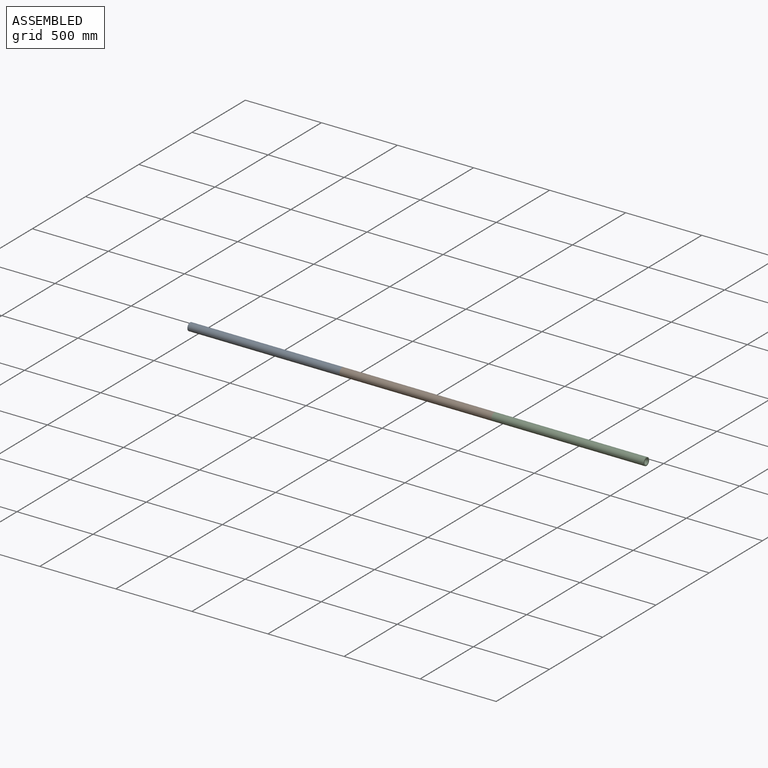
[diagram: assembled view]
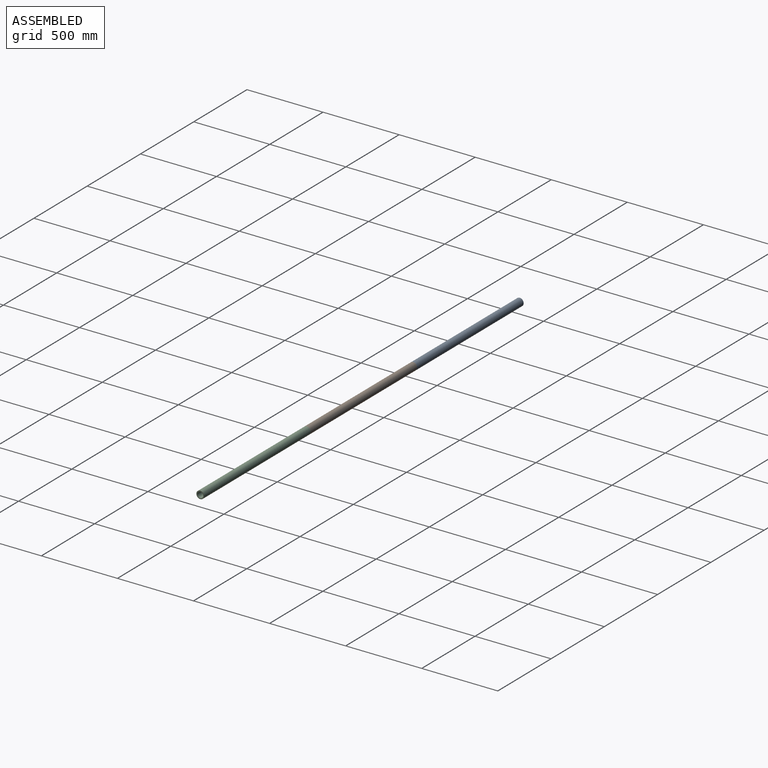
[diagram: assembled view, second angle]
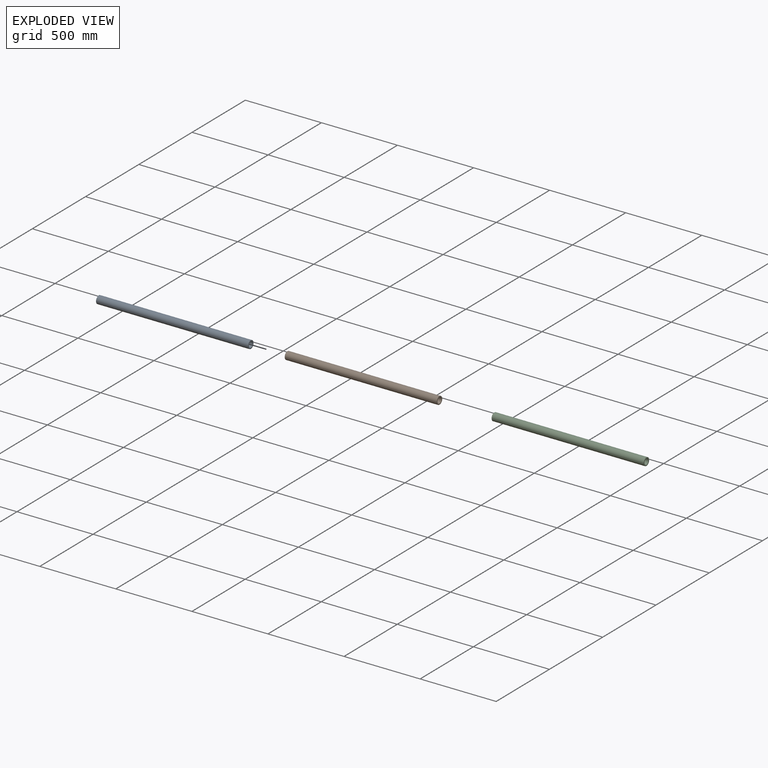
[diagram: exploded view]
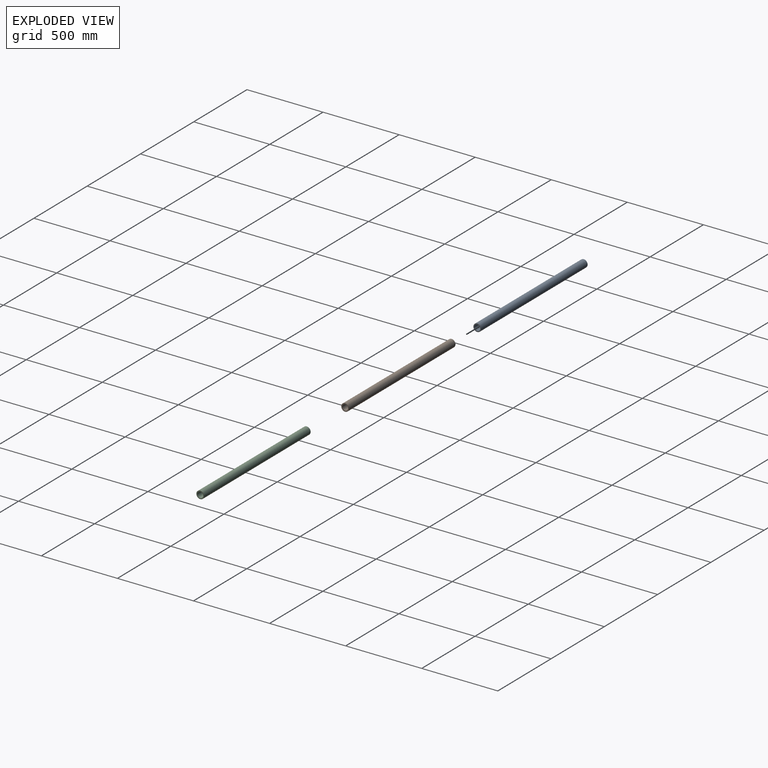
[diagram: exploded view, second angle]
ASSEMBLY  parts=3 mates=2
PART A: 4 faces, bbox 50.8x50.8x1000 mm
  f0: cylinder r=19.05mm len=1000mm, axis (0,0,1), area 119694.7mm2, adj f2,f3
  f1: cylinder r=25.4mm len=1000mm, axis (0,0,1), area 159592.9mm2, adj f2,f3
  f2: plane 50.8x50.8mm, normal (0,0,-1), area 886.7mm2, adj f0,f1
  f3: plane 50.8x50.8mm, normal (0,0,1), area 886.7mm2, adj f0,f1
PART B: same geometry as A
PART C: same geometry as A
PLACE A rot(axis=(0,1,0),90deg) t=(-502.42,-3657.6,11.24)mm
PLACE B rot(axis=(0,1,0),90deg) t=(497.58,-3657.6,11.24)mm
PLACE C rot(axis=(0,-1,0),90deg) t=(497.58,-3657.6,11.24)mm
MATE fastened C.f0 <-> B.f0  axis (-1,0,0) through (497.58,-3657.6,11.24)mm
MATE fastened B.f0 <-> A.f0  axis (1,0,0) through (-502.42,-3657.6,11.24)mm
